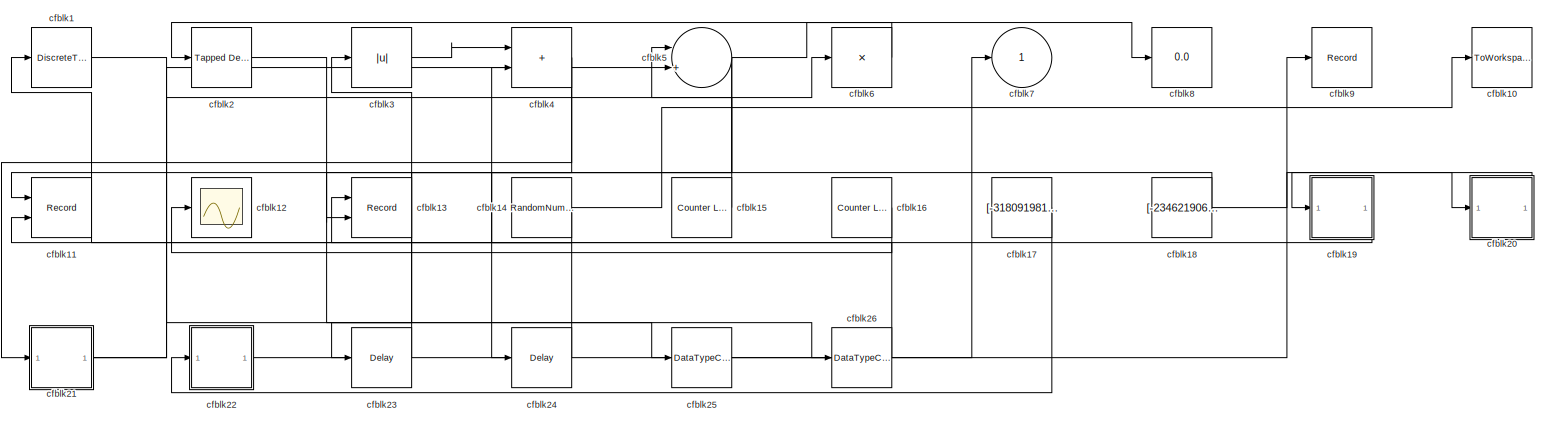
[diagram: root canvas - part 1/1, most of the canvas]
MODEL slx_859ad206b689
KIND model
CONFIG AbsTol = auto
CONFIG EnableMultiTasking = off
CONFIG FixedStep = auto
CONFIG MaxStep = auto
CONFIG MinStep = auto
CONFIG RelTol = 1e-3
CONFIG SampleTimeConstraint = Unconstrained
CONFIG SolverName = VariableStepAuto
CONFIG StartTime = 0.0
CONFIG StopTime = 10.0
BLOCK [DiscreteTransferFcn] cfblk1
  InputPortMap = u0
  Ports = [1, 1]
  SampleTime = 1
BLOCK [ToWorkspace] cfblk10
  FixptAsFi = on
  MaxDataPoints = inf
  Ports = [1]
  SampleTime = -1
  SaveFormat = Timeseries
  VariableName = oibwgub
BLOCK [Record] cfblk11
  CompatibilityTag = XY
  FileSettingsInternal = {"entries":[{"content":{"excelSettings":{"content":{},"type":"Streamout.ExcelSettings"}},"type":"Streamout.FileSettingStorage","uuid":"f7cf1135-fab7-49b0-b509-b4096393f572"}],"packageUris":["http://schema.mathworks.com/mf0/streamout_blocks/R2020a"],"version":"1.0"}
  Layout = [1 1]
  Ports = [2]
  SignalsInternal = {"entries":[{"content":{"signals":[{"content":{"blockPath":["sampleModel356/cfblk11"],"channel":[],"dimensions":[1],"domain":"sampleModel356/cfblk11","lineColor":"#a2142f","plots":[1],"port":1,"sid":[""],"signalID":14870,"signalName":"cfblk18"},"type":"RecordBlkView.Signal","uuid":"d168b0b0-4f10-46dc-9af9-509f06b761f4"},{"content":{"blockPath":["sampleModel356/cfblk11"],"channel":[],"dimensions":[...<+385ch>
  VisualizationBindings = {"xyplotplugin":{"info":[{"series":[{"bindingParametersList":[{"parameter":"X-Axis","signalID":14870,"signalName":"cfblk18"},{"parameter":"Y-Axis","signalID":14874,"signalName":"cfblk19"}],"seriesID":13210}],"subplotID":1}]}}
BLOCK [Scope] cfblk12
  Floating = off
  NumInputPorts = 1
  Ports = [1]
BLOCK [Record] cfblk13
  CompatibilityTag = XY
  FileSettingsInternal = {"entries":[{"content":{"excelSettings":{"content":{},"type":"Streamout.ExcelSettings"}},"type":"Streamout.FileSettingStorage","uuid":"1e1e8cce-afe3-4879-8cf3-0e8c36288c66"}],"packageUris":["http://schema.mathworks.com/mf0/streamout_blocks/R2020a"],"version":"1.0"}
  Layout = [1 1]
  Ports = [2]
  SignalsInternal = {"entries":[{"content":{"signals":[{"content":{"blockPath":["sampleModel356/cfblk13"],"channel":[],"dimensions":[1],"domain":"sampleModel356/cfblk13","lineColor":"#a2142f","plots":[1],"port":1,"sid":[""],"signalID":14858,"signalName":"cfblk14"},"type":"RecordBlkView.Signal","uuid":"6a327e09-5034-4fe2-a7e3-7112f60d3f56"},{"content":{"blockPath":["sampleModel356/cfblk13"],"channel":[],"dimensions":[...<+384ch>
  VisualizationBindings = {"xyplotplugin":{"info":[{"series":[{"bindingParametersList":[{"parameter":"X-Axis","signalID":14858,"signalName":"cfblk14"},{"parameter":"Y-Axis","signalID":14862,"signalName":"cfblk4"}],"seriesID":15766}],"subplotID":1}]}}
BLOCK [RandomNumber] cfblk14
  Mean = [15872.946615]
  SampleTime = 0.1
  Seed = [933413514.000000]
  Variance = [24959.344930]
BLOCK [Reference] cfblk15  REF=simulink/Sources/Counter
Limited
  Ports = [0, 1]
  SourceBlock = simulink/Sources/Counter\nLimited
  SourceProductBaseCode = SL
  SourceType = Counter Limited
BLOCK [Reference] cfblk16  REF=simulink/Sources/Counter
Limited
  Ports = [0, 1]
  SourceBlock = simulink/Sources/Counter\nLimited
  SourceProductBaseCode = SL
  SourceType = Counter Limited
BLOCK [Constant] cfblk17
  SampleTime = 1
  Value = [-318091981.107351]
BLOCK [Constant] cfblk18
  SampleTime = 1
  Value = [-234621906.360759]
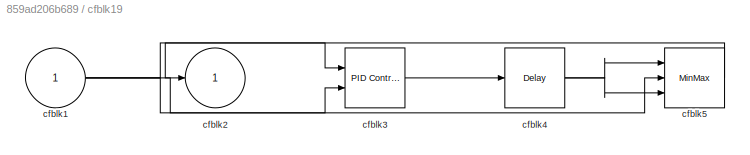
BLOCK [SubSystem] cfblk19
  Ports = [1, 1]
  RequestExecContextInheritance = off
BLOCK [Inport] cfblk19/cfblk1
BLOCK [Outport] cfblk19/cfblk2
BLOCK [Reference] cfblk19/cfblk3  REF=slpidlib/PID Controller (2DOF)
  Ports = [2, 1]
  SourceBlock = slpidlib/PID Controller (2DOF)
  SourceProductBaseCode = SL
  SourceType = PID 2dof
BLOCK [Delay] cfblk19/cfblk4
  InputPortMap = u0
  Ports = [1, 1]
  SampleTime = 1
BLOCK [MinMax] cfblk19/cfblk5
  Inputs = 3
  Ports = [3, 1]
BLOCK [Reference] cfblk2  REF=simulink/Discrete/Tapped Delay
  Ports = [1, 1]
  SourceBlock = simulink/Discrete/Tapped Delay
  SourceProductBaseCode = SL
  SourceType = Tapped Delay Line
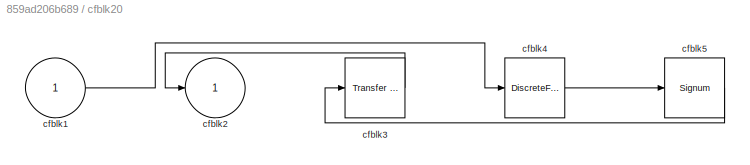
BLOCK [SubSystem] cfblk20
  Ports = [1, 1]
  RequestExecContextInheritance = off
BLOCK [Inport] cfblk20/cfblk1
BLOCK [Outport] cfblk20/cfblk2
BLOCK [Reference] cfblk20/cfblk3  REF=simulink/Discrete/Transfer Fcn
Real Zero
  Ports = [1, 1]
  SourceBlock = simulink/Discrete/Transfer Fcn\nReal Zero
  SourceProductBaseCode = SL
  SourceType = Transfer Fcn Real Zero
BLOCK [DiscreteFilter] cfblk20/cfblk4
  InputPortMap = u0
  Ports = [1, 1]
  SampleTime = 1
BLOCK [Signum] cfblk20/cfblk5
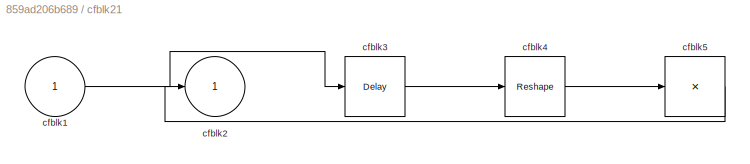
BLOCK [SubSystem] cfblk21
  Ports = [1, 1]
  RequestExecContextInheritance = off
BLOCK [Inport] cfblk21/cfblk1
BLOCK [Outport] cfblk21/cfblk2
BLOCK [Delay] cfblk21/cfblk3
  InputPortMap = u0
  Ports = [1, 1]
  SampleTime = 1
BLOCK [Reshape] cfblk21/cfblk4
  Ports = [1, 1]
BLOCK [Product] cfblk21/cfblk5
  Inputs = *
  Ports = [1, 1]
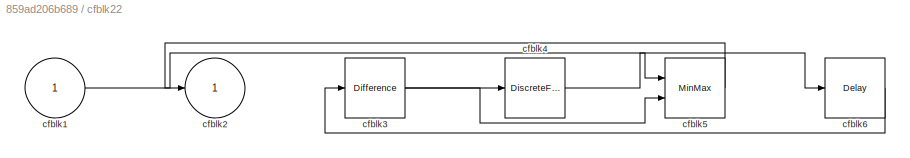
BLOCK [SubSystem] cfblk22
  Ports = [1, 1]
  RequestExecContextInheritance = off
BLOCK [Inport] cfblk22/cfblk1
BLOCK [Outport] cfblk22/cfblk2
BLOCK [Reference] cfblk22/cfblk3  REF=simulink/Discrete/Difference
  Ports = [1, 1]
  SourceBlock = simulink/Discrete/Difference
  SourceProductBaseCode = SL
  SourceType = Difference
BLOCK [DiscreteFilter] cfblk22/cfblk4
  InputPortMap = u0
  Ports = [1, 1]
  SampleTime = 1
BLOCK [MinMax] cfblk22/cfblk5
  Inputs = 2
  Ports = [2, 1]
BLOCK [Delay] cfblk22/cfblk6
  InputPortMap = u0
  Ports = [1, 1]
  SampleTime = 1
BLOCK [Delay] cfblk23
  InputPortMap = u0
  Ports = [1, 1]
  SampleTime = 1
BLOCK [Delay] cfblk24
  InputPortMap = u0
  Ports = [1, 1]
  SampleTime = 1
BLOCK [DataTypeConversion] cfblk25
  RndMeth = Floor
  SaturateOnIntegerOverflow = off
BLOCK [DataTypeConversion] cfblk26
  RndMeth = Floor
  SaturateOnIntegerOverflow = off
BLOCK [Abs] cfblk3
  SaturateOnIntegerOverflow = off
BLOCK [Sum] cfblk4
  IconShape = rectangular
  Ports = [2, 1]
BLOCK [Sum] cfblk5
  Inputs = |++
  Ports = [2, 1]
BLOCK [Product] cfblk6
  Inputs = *
  Ports = [1, 1]
BLOCK [Outport] cfblk7
BLOCK [Display] cfblk8
  Decimation = 1
  Ports = [1]
BLOCK [Record] cfblk9
  FileSettingsInternal = {"entries":[{"content":{"excelSettings":{"content":{},"type":"Streamout.ExcelSettings"}},"type":"Streamout.FileSettingStorage","uuid":"394831a3-6f16-480d-90e3-9806f58ee700"}],"packageUris":["http://schema.mathworks.com/mf0/streamout_blocks/R2020a"],"version":"1.0"}
  Ports = [1]
  SignalsInternal = {"entries":[{"content":{"signals":[{"content":{"blockPath":["sampleModel356/cfblk9"],"channel":[],"dimensions":[1],"domain":"sampleModel356/cfblk9","lineColor":"#edb120","plots":[1],"port":1,"sid":[""],"signalID":14866,"signalName":"cfblk25"},"type":"RecordBlkView.Signal","uuid":"7e7b1933-ec16-40c2-a7dc-3907081fd54a"}]},"type":"RecordBlkView.InputSignals","uuid":"25d2bbb5-58e4-4035-93b0-d4b8c4893e...<+96ch>
  VisualizationBindings = {"sparklinesplugin":{"info":[{"bindingParametersList":[],"subplotID":1}]}}
NET cfblk14:1 -> cfblk10:1, cfblk13:1
LINE cfblk15:1 -> cfblk5:1
LINE cfblk16:1 -> cfblk12:1
LINE cfblk17:1 -> cfblk22:1
NET cfblk18:1 -> cfblk11:1, cfblk20:1
NET cfblk19/cfblk1:1 -> cfblk19/cfblk3:1, cfblk19/cfblk3:2, cfblk19/cfblk5:2
LINE cfblk19/cfblk3:1 -> cfblk19/cfblk4:1
NET cfblk19/cfblk4:1 -> cfblk19/cfblk5:1, cfblk19/cfblk5:3
LINE cfblk19/cfblk5:1 -> cfblk19/cfblk2:1
LINE cfblk19:1 -> cfblk11:2
LINE cfblk1:1 -> cfblk25:1
LINE cfblk20/cfblk1:1 -> cfblk20/cfblk4:1
LINE cfblk20/cfblk3:1 -> cfblk20/cfblk2:1
LINE cfblk20/cfblk4:1 -> cfblk20/cfblk5:1
LINE cfblk20/cfblk5:1 -> cfblk20/cfblk3:1
LINE cfblk20:1 -> cfblk19:1
LINE cfblk21/cfblk1:1 -> cfblk21/cfblk3:1
LINE cfblk21/cfblk3:1 -> cfblk21/cfblk4:1
LINE cfblk21/cfblk4:1 -> cfblk21/cfblk5:1
LINE cfblk21/cfblk5:1 -> cfblk21/cfblk2:1
NET cfblk21:1 -> cfblk5:2, cfblk6:1
LINE cfblk22/cfblk1:1 -> cfblk22/cfblk5:1
NET cfblk22/cfblk3:1 -> cfblk22/cfblk4:1, cfblk22/cfblk5:2
LINE cfblk22/cfblk4:1 -> cfblk22/cfblk6:1
LINE cfblk22/cfblk5:1 -> cfblk22/cfblk2:1
LINE cfblk22/cfblk6:1 -> cfblk22/cfblk3:1
LINE cfblk22:1 -> cfblk7:1
LINE cfblk23:1 -> cfblk3:1
LINE cfblk24:1 -> cfblk4:2
LINE cfblk25:1 -> cfblk9:1
LINE cfblk26:1 -> cfblk1:1
LINE cfblk2:1 -> cfblk26:1
LINE cfblk3:1 -> cfblk4:1
NET cfblk4:1 -> cfblk13:2, cfblk21:1
NET cfblk5:1 -> cfblk23:1, cfblk24:1, cfblk8:1
LINE cfblk6:1 -> cfblk2:1
note: NET lines group one-source signal fan-out (src -> all destinations, sorted); 1:1 wires keep LINE
